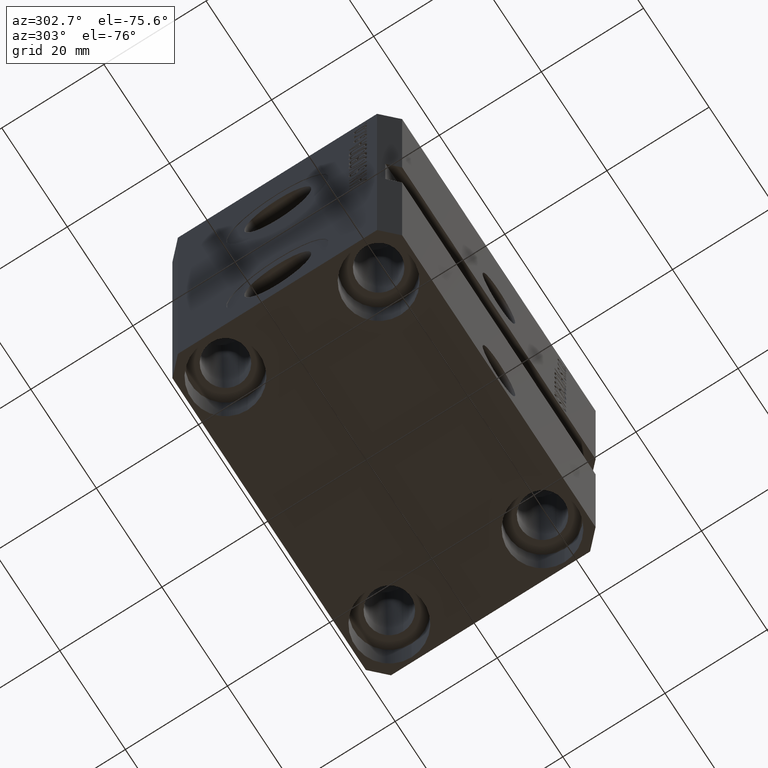
[diagram: clean part render]
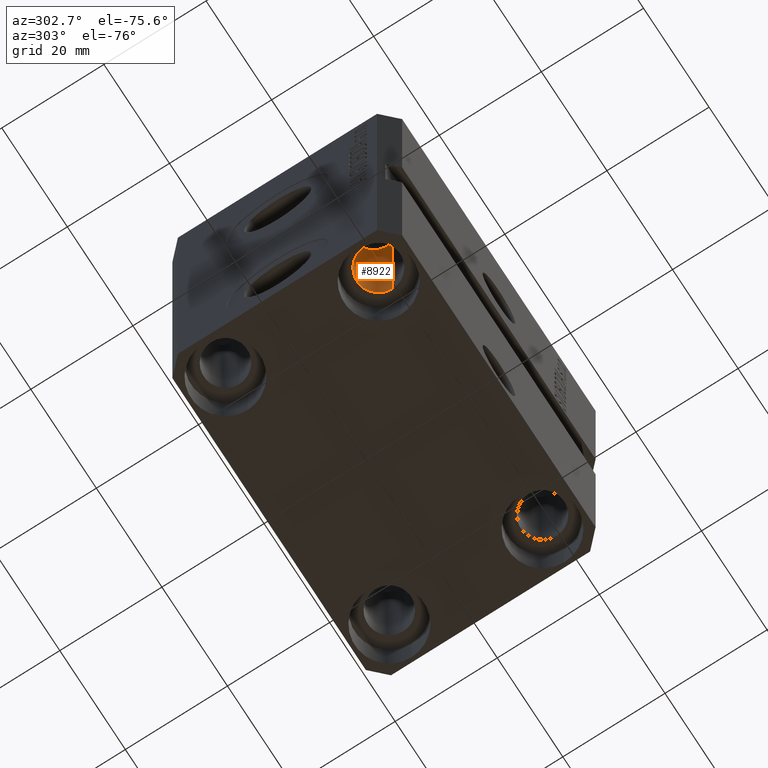
[diagram: same view with one face highlighted and labeled with its STEP entity id]
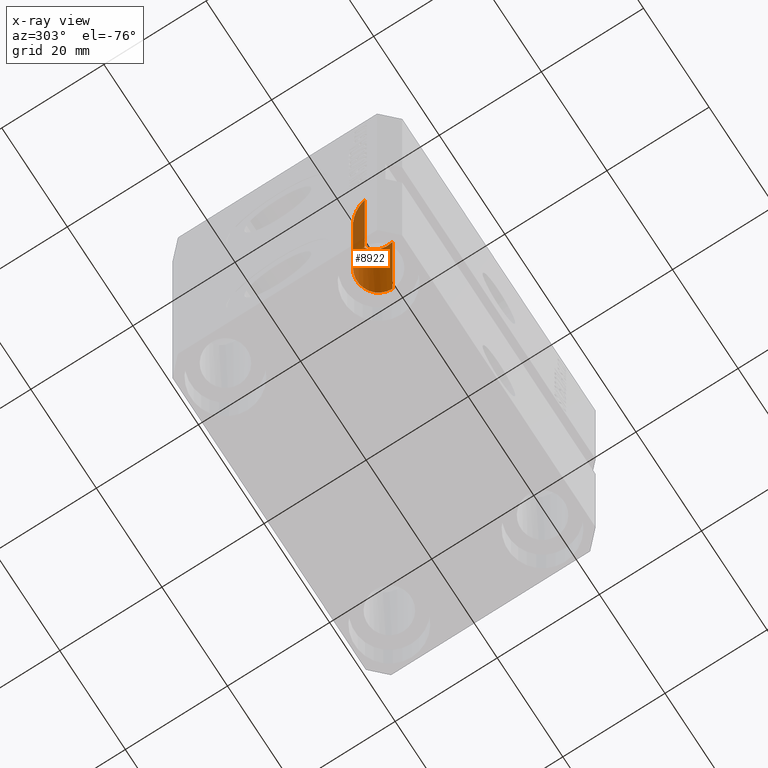
[diagram: x-ray of the same camera — body ghosted, the highlighted face saturated]
A machine part, auxiliary view. The second image highlights one B-rep face of the part: STEP entity #8922.
The next image is the same camera in x-ray: the body ghosted, the highlighted face saturated — about 21% of this face is hidden behind the body in this view.
In plain terms, the highlighted cylindrical surface (edge-blend (fillet) strip) has radius 4.25 mm, axis along (0, 0, 1).
Its self-contained STEP definition (entity closure, byte-faithful):
#176 = CARTESIAN_POINT ( 'NONE',  ( -20.74999999998233946, -15.00000000000000000, -37.00000000000000000 ) ) ;
#1004 = DIRECTION ( 'NONE',  ( -0.000000000000000000, -0.000000000000000000, 1.000000000000000000 ) ) ;
#1302 = EDGE_CURVE ( 'NONE', #12829, #44090, #43522, .T. ) ;
#1935 = VERTEX_POINT ( 'NONE', #176 ) ;
#3600 = CARTESIAN_POINT ( 'NONE',  ( -29.25000000001766409, -15.00000000000000000, -37.00000000000000000 ) ) ;
#8708 = FACE_OUTER_BOUND ( 'NONE', #22571, .T. ) ;
#8922 = ADVANCED_FACE ( 'NONE', ( #8708 ), #36126, .F. ) ;
#9597 = DIRECTION ( 'NONE',  ( 1.000000000000000000, 0.000000000000000000, 0.000000000000000000 ) ) ;
#9703 = CARTESIAN_POINT ( 'NONE',  ( -29.25000000001766409, -15.00000000000000000, -37.00000000000000000 ) ) ;
#10889 = LINE ( 'NONE', #41901, #34066 ) ;
#12829 = VERTEX_POINT ( 'NONE', #33978 ) ;
#14133 = CARTESIAN_POINT ( 'NONE',  ( -20.74999999995846522, -15.00000000000000000, -68.00000000000000000 ) ) ;
#17333 = ORIENTED_EDGE ( 'NONE', *, *, #26027, .T. ) ;
#17635 = VERTEX_POINT ( 'NONE', #14133 ) ;
#18612 = AXIS2_PLACEMENT_3D ( 'NONE', #39938, #40169, #9597 ) ;
#21126 = DIRECTION ( 'NONE',  ( 0.000000000000000000, 0.000000000000000000, -1.000000000000000000 ) ) ;
#21315 = VECTOR ( 'NONE', #23087, 1000.000000000000000 ) ;
#22571 = EDGE_LOOP ( 'NONE', ( #35603, #17333, #32713, #38242 ) ) ;
#23087 = DIRECTION ( 'NONE',  ( -0.000000000000000000, -0.000000000000000000, 1.000000000000000000 ) ) ;
#25145 = CARTESIAN_POINT ( 'NONE',  ( -29.25000000001766409, -6.499999999964680697, -45.50000000003532108 ) ) ;
#25434 = CIRCLE ( 'NONE', #29726, 4.250000000041540105 ) ;
#26027 = EDGE_CURVE ( 'NONE', #12829, #17635, #25434, .T. ) ;
#26531 = EDGE_CURVE ( 'NONE', #17635, #1935, #10889, .T. ) ;
#28514 = CARTESIAN_POINT ( 'NONE',  ( -25.00000000000000355, -15.00000000000000000, -68.00000000000000000 ) ) ;
#29726 = AXIS2_PLACEMENT_3D ( 'NONE', #28514, #21126, #38207 ) ;
#31509 = EDGE_CURVE ( 'NONE', #1935, #44090, #37445, .T. ) ;
#32713 = ORIENTED_EDGE ( 'NONE', *, *, #26531, .T. ) ;
#33978 = CARTESIAN_POINT ( 'NONE',  ( -29.25000000004154543, -15.00000000000000000, -68.00000000000000000 ) ) ;
#34066 = VECTOR ( 'NONE', #1004, 1000.000000000000000 ) ;
#34607 = CARTESIAN_POINT ( 'NONE',  ( -20.74999999998234301, -6.499999999964680697, -45.50000000003532108 ) ) ;
#35603 = ORIENTED_EDGE ( 'NONE', *, *, #1302, .F. ) ;
#36126 = CYLINDRICAL_SURFACE ( 'NONE', #18612, 4.250000000041540105 ) ;
#37445 =( BOUNDED_CURVE ( )  B_SPLINE_CURVE ( 3, ( #38417, #34607, #25145, #3600 ),
 .UNSPECIFIED., .F., .T. ) 
 B_SPLINE_CURVE_WITH_KNOTS ( ( 4, 4 ),
 ( 1.570796326794896558, 4.712388980384689674 ),
 .UNSPECIFIED. ) 
 CURVE ( )  GEOMETRIC_REPRESENTATION_ITEM ( )  RATIONAL_B_SPLINE_CURVE ( ( 1.000000000000000000, 0.3333333333333333703, 0.3333333333333333703, 1.000000000000000000 ) ) 
 REPRESENTATION_ITEM ( '' )  );
#38207 = DIRECTION ( 'NONE',  ( -1.000000000000000000, 0.000000000000000000, 0.000000000000000000 ) ) ;
#38242 = ORIENTED_EDGE ( 'NONE', *, *, #31509, .T. ) ;
#38417 = CARTESIAN_POINT ( 'NONE',  ( -20.74999999998233946, -15.00000000000000000, -37.00000000000000000 ) ) ;
#39938 = CARTESIAN_POINT ( 'NONE',  ( -25.00000000000000355, -15.00000000000000000, -77.00000000000000000 ) ) ;
#40169 = DIRECTION ( 'NONE',  ( -0.000000000000000000, -0.000000000000000000, 1.000000000000000000 ) ) ;
#41901 = CARTESIAN_POINT ( 'NONE',  ( -20.74999999995846522, -15.00000000000000000, -77.00000000000000000 ) ) ;
#43522 = LINE ( 'NONE', #43750, #21315 ) ;
#43750 = CARTESIAN_POINT ( 'NONE',  ( -29.25000000004154543, -15.00000000000000000, -77.00000000000000000 ) ) ;
#44090 = VERTEX_POINT ( 'NONE', #9703 ) ;